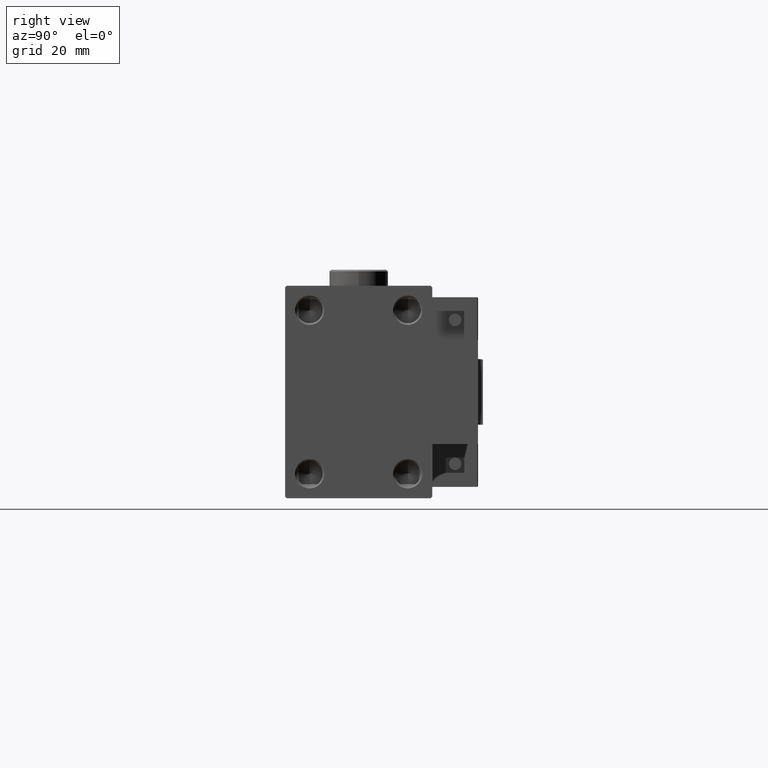
[diagram: clean part render]
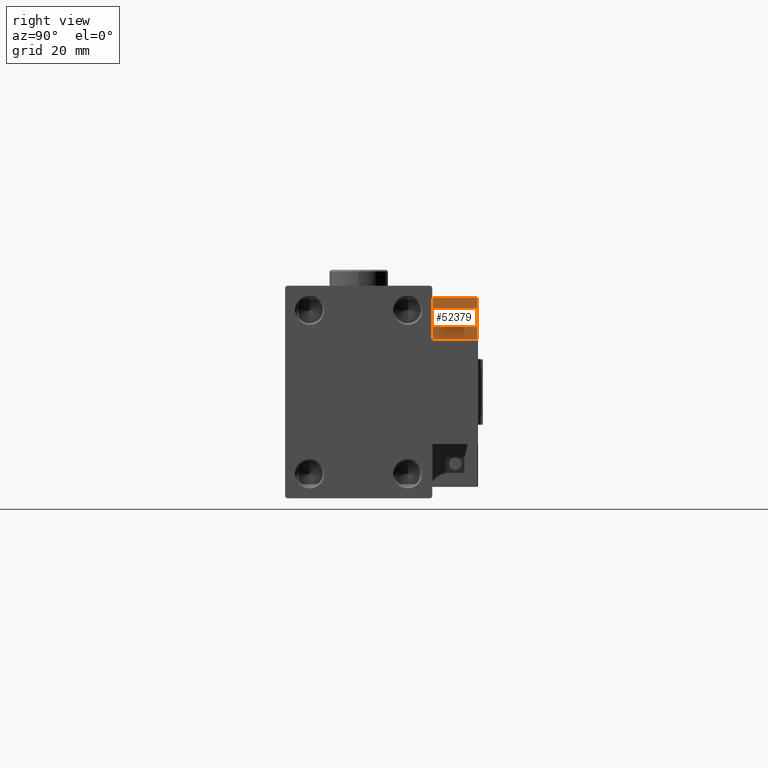
[diagram: same view with one face highlighted and labeled with its STEP entity id]
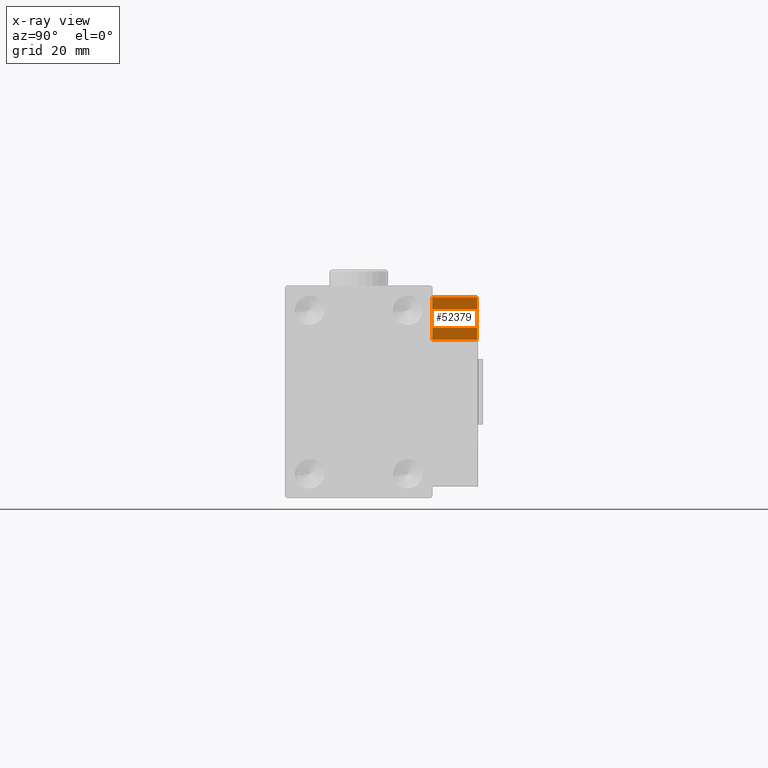
[diagram: x-ray of the same camera — body ghosted, the highlighted face saturated]
A machine part, right view. The second image highlights one B-rep face of the part: STEP entity #52379.
The next image is the same camera in x-ray: the body ghosted, the highlighted face saturated — about 6% of this face is hidden behind the body in this view.
In plain terms, the highlighted planar face has unit normal (-1, -0, -0).
Its self-contained STEP definition (entity closure, byte-faithful):
#2225 = ORIENTED_EDGE ( 'NONE', *, *, #11509, .T. ) ;
#3788 = DIRECTION ( 'NONE',  ( -8.006416042969869188E-16, -1.000000000000000000, 0.000000000000000000 ) ) ;
#6300 = CARTESIAN_POINT ( 'NONE',  ( -26.99999999999993605, 20.00000000000002132, 14.00000000000000000 ) ) ;
#6889 = VECTOR ( 'NONE', #20405, 1000.000000000000000 ) ;
#7536 = EDGE_CURVE ( 'NONE', #33412, #48545, #40337, .T. ) ;
#10557 = DIRECTION ( 'NONE',  ( 1.000000000000000000, -8.006416042969869188E-16, 0.000000000000000000 ) ) ;
#11484 = DIRECTION ( 'NONE',  ( -0.000000000000000000, -0.000000000000000000, -1.000000000000000000 ) ) ;
#11509 = EDGE_CURVE ( 'NONE', #17529, #11660, #15994, .T. ) ;
#11660 = VERTEX_POINT ( 'NONE', #13574 ) ;
#13574 = CARTESIAN_POINT ( 'NONE',  ( -26.99999999999994671, 7.000000000000005329, 0.000000000000000000 ) ) ;
#13639 = CARTESIAN_POINT ( 'NONE',  ( -26.99999999999993605, 20.00000000000002132, 13.70000000000000107 ) ) ;
#14086 = ORIENTED_EDGE ( 'NONE', *, *, #20917, .F. ) ;
#15687 = VECTOR ( 'NONE', #11484, 1000.000000000000000 ) ;
#15994 = LINE ( 'NONE', #32220, #44292 ) ;
#16522 = LINE ( 'NONE', #32741, #15687 ) ;
#16671 = CARTESIAN_POINT ( 'NONE',  ( -26.99999999999993605, 20.00000000000002132, 13.70000000000000107 ) ) ;
#17529 = VERTEX_POINT ( 'NONE', #28654 ) ;
#19315 = PLANE ( 'NONE',  #25734 ) ;
#19905 = EDGE_CURVE ( 'NONE', #48545, #17529, #16522, .T. ) ;
#20405 = DIRECTION ( 'NONE',  ( 8.006416042969869188E-16, 1.000000000000000000, -0.000000000000000000 ) ) ;
#20917 = EDGE_CURVE ( 'NONE', #33412, #11660, #49927, .T. ) ;
#25734 = AXIS2_PLACEMENT_3D ( 'NONE', #6300, #10557, #38724 ) ;
#27020 = FACE_OUTER_BOUND ( 'NONE', #41133, .T. ) ;
#27997 = CARTESIAN_POINT ( 'NONE',  ( -26.99999999999994671, 7.000000000000005329, 13.70000000000000107 ) ) ;
#28654 = CARTESIAN_POINT ( 'NONE',  ( -26.99999999999993605, 20.00000000000002132, 0.000000000000000000 ) ) ;
#29454 = DIRECTION ( 'NONE',  ( -0.000000000000000000, -0.000000000000000000, -1.000000000000000000 ) ) ;
#32220 = CARTESIAN_POINT ( 'NONE',  ( -26.99999999999993605, 20.00000000000002132, 0.000000000000000000 ) ) ;
#32741 = CARTESIAN_POINT ( 'NONE',  ( -26.99999999999993605, 20.00000000000002132, 14.00000000000000000 ) ) ;
#33412 = VERTEX_POINT ( 'NONE', #27997 ) ;
#38724 = DIRECTION ( 'NONE',  ( 8.006416042969869188E-16, 1.000000000000000000, 0.000000000000000000 ) ) ;
#40337 = LINE ( 'NONE', #16671, #6889 ) ;
#41133 = EDGE_LOOP ( 'NONE', ( #14086, #49127, #48853, #2225 ) ) ;
#44292 = VECTOR ( 'NONE', #3788, 1000.000000000000000 ) ;
#45418 = CARTESIAN_POINT ( 'NONE',  ( -26.99999999999994671, 7.000000000000005329, 14.00000000000000000 ) ) ;
#47162 = VECTOR ( 'NONE', #29454, 1000.000000000000000 ) ;
#48545 = VERTEX_POINT ( 'NONE', #13639 ) ;
#48853 = ORIENTED_EDGE ( 'NONE', *, *, #19905, .T. ) ;
#49127 = ORIENTED_EDGE ( 'NONE', *, *, #7536, .T. ) ;
#49927 = LINE ( 'NONE', #45418, #47162 ) ;
#52379 = ADVANCED_FACE ( 'NONE', ( #27020 ), #19315, .F. ) ;